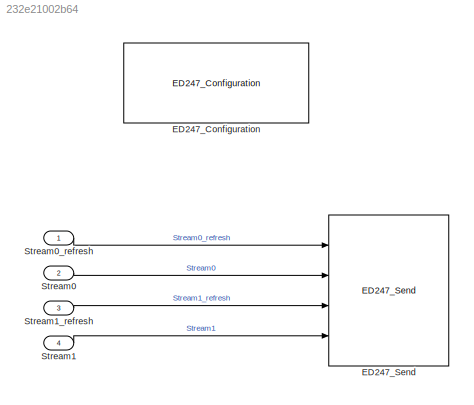
MODEL slx_232e21002b64
KIND model
CONFIG AbsTol = auto
CONFIG EnableMultiTasking = off
CONFIG FixedStep = auto
CONFIG MaxStep = auto
CONFIG MinStep = auto
CONFIG RelTol = 1e-3
CONFIG SampleTimeConstraint = Unconstrained
CONFIG Solver = VariableStepAuto
CONFIG SolverName = VariableStepAuto
CONFIG StartTime = 0.0
CONFIG StopTime = 10.0
BLOCK [Reference] ED247_Configuration  REF=lib_ed247/ED247_Configuration
  Ports = []
  SourceBlock = lib_ed247/ED247_Configuration
  SourceProductName = Airbus ED247
  SourceType = Configurable block example
BLOCK [Reference] ED247_Send  REF=lib_ed247/ED247_Send
  Ports = [4]
  SourceBlock = lib_ed247/ED247_Send
  SourceProductName = Airbus ED247
  SourceType = ED247 Send
BLOCK [Inport] Stream0
  IconDisplay = Port number
  OutDataTypeStr = uint8
  Port = 2
  PortDimensions = 3
  SampleTime = 0.1
BLOCK [Inport] Stream0_refresh
  IconDisplay = Port number
  OutDataTypeStr = boolean
  PortDimensions = 1
BLOCK [Inport] Stream1
  IconDisplay = Port number
  OutDataTypeStr = uint8
  Port = 4
  PortDimensions = 5
  SampleTime = 0.1
BLOCK [Inport] Stream1_refresh
  IconDisplay = Port number
  OutDataTypeStr = boolean
  Port = 3
  PortDimensions = 1
LINE Stream0:1 -> ED247_Send:2
LINE Stream0_refresh:1 -> ED247_Send:1
LINE Stream1:1 -> ED247_Send:4
LINE Stream1_refresh:1 -> ED247_Send:3
